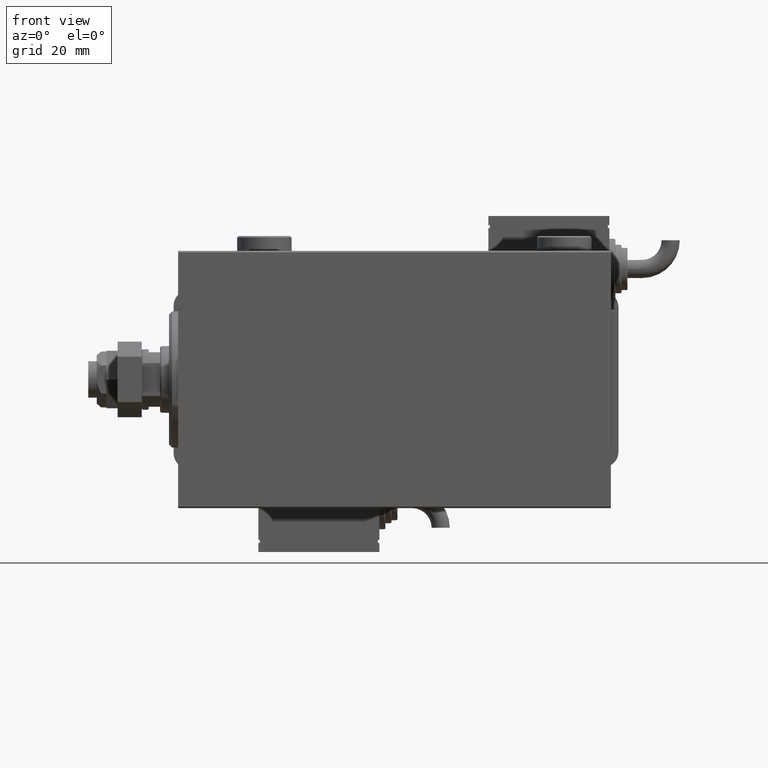
[diagram: clean part render]
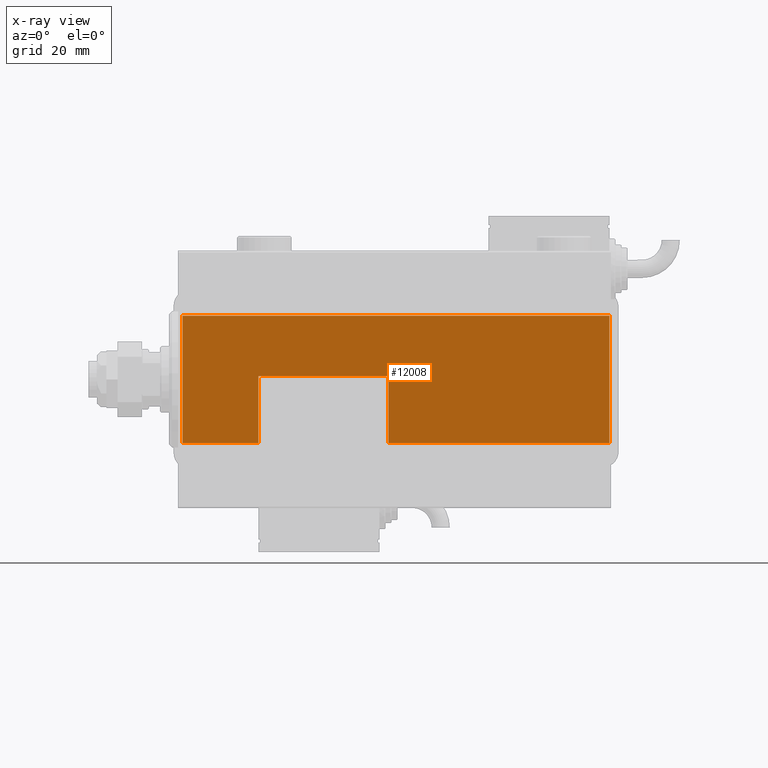
[diagram: x-ray — body ghosted, one internal face saturated and labeled with its STEP entity id]
A machine part, front view, then the same camera in x-ray: the body is ghosted and one INTERNAL B-rep face — a face not visible from any outside direction — is saturated and labeled: STEP entity #12008.
In plain terms, the highlighted planar face has unit normal (0, 1, -0).
Its self-contained STEP definition (entity closure, byte-faithful):
#10 = DIRECTION ( 'NONE',  ( 0.000000000000000000, -0.000000000000000000, 1.000000000000000000 ) ) ;
#4320 = DIRECTION ( 'NONE',  ( 0.000000000000000000, 1.000000000000000000, 0.000000000000000000 ) ) ;
#5029 = ORIENTED_EDGE ( 'NONE', *, *, #57652, .T. ) ;
#5928 = EDGE_CURVE ( 'NONE', #54383, #49446, #8482, .T. ) ;
#5935 = VECTOR ( 'NONE', #57774, 1000.000000000000000 ) ;
#5965 = CARTESIAN_POINT ( 'NONE',  ( -26.00000000000000000, 22.79999999999999716, 144.0000000000000000 ) ) ;
#6276 = DIRECTION ( 'NONE',  ( -0.000000000000000000, -0.000000000000000000, 1.000000000000000000 ) ) ;
#6315 = AXIS2_PLACEMENT_3D ( 'NONE', #27768, #4320, #10 ) ;
#6634 = DIRECTION ( 'NONE',  ( 1.000000000000000000, -0.000000000000000000, 0.000000000000000000 ) ) ;
#8446 = ORIENTED_EDGE ( 'NONE', *, *, #29453, .F. ) ;
#8482 = LINE ( 'NONE', #27295, #19870 ) ;
#8784 = CARTESIAN_POINT ( 'NONE',  ( -20.99999999999999645, 22.79999999999999716, 3.000000000000002665 ) ) ;
#8897 = VERTEX_POINT ( 'NONE', #44927 ) ;
#9972 = EDGE_CURVE ( 'NONE', #49446, #12838, #34704, .T. ) ;
#10310 = EDGE_CURVE ( 'NONE', #34469, #59660, #31817, .T. ) ;
#11244 = CARTESIAN_POINT ( 'NONE',  ( -26.00000000000000000, 22.79999999999999716, 119.0000000000000000 ) ) ;
#12008 = ADVANCED_FACE ( 'NONE', ( #23132 ), #14799, .F. ) ;
#12838 = VERTEX_POINT ( 'NONE', #31270 ) ;
#13091 = VECTOR ( 'NONE', #6634, 1000.000000000000000 ) ;
#14730 = EDGE_CURVE ( 'NONE', #60135, #55310, #25689, .T. ) ;
#14799 = PLANE ( 'NONE',  #6315 ) ;
#19252 = LINE ( 'NONE', #5965, #5935 ) ;
#19284 = LINE ( 'NONE', #48535, #33100 ) ;
#19870 = VECTOR ( 'NONE', #46102, 1000.000000000000000 ) ;
#22850 = DIRECTION ( 'NONE',  ( 0.000000000000000000, 0.000000000000000000, -1.000000000000000000 ) ) ;
#23132 = FACE_OUTER_BOUND ( 'NONE', #44761, .T. ) ;
#24099 = VECTOR ( 'NONE', #6276, 1000.000000000000000 ) ;
#25689 = LINE ( 'NONE', #48508, #24099 ) ;
#26622 = ORIENTED_EDGE ( 'NONE', *, *, #9972, .T. ) ;
#26872 = VECTOR ( 'NONE', #22850, 1000.000000000000000 ) ;
#27295 = CARTESIAN_POINT ( 'NONE',  ( -20.99999999999999645, 22.79999999999999716, 0.000000000000000000 ) ) ;
#27338 = CARTESIAN_POINT ( 'NONE',  ( -26.00000000000000000, 22.79999999999999716, 3.000000000000002665 ) ) ;
#27768 = CARTESIAN_POINT ( 'NONE',  ( -26.00000000000000000, 22.79999999999999716, 144.0000000000000000 ) ) ;
#29453 = EDGE_CURVE ( 'NONE', #8897, #12838, #34801, .T. ) ;
#31270 = CARTESIAN_POINT ( 'NONE',  ( 1.000000000000014655, 22.79999999999999716, 119.0000000000000000 ) ) ;
#31370 = DIRECTION ( 'NONE',  ( -1.000000000000000000, 0.000000000000000000, 0.000000000000000000 ) ) ;
#31390 = ORIENTED_EDGE ( 'NONE', *, *, #10310, .T. ) ;
#31817 = LINE ( 'NONE', #55239, #26872 ) ;
#32870 = ORIENTED_EDGE ( 'NONE', *, *, #5928, .T. ) ;
#33100 = VECTOR ( 'NONE', #34081, 1000.000000000000000 ) ;
#33769 = ORIENTED_EDGE ( 'NONE', *, *, #43703, .F. ) ;
#34081 = DIRECTION ( 'NONE',  ( -1.000000000000000000, 0.000000000000000000, 0.000000000000000000 ) ) ;
#34469 = VERTEX_POINT ( 'NONE', #56886 ) ;
#34704 = LINE ( 'NONE', #11244, #13091 ) ;
#34801 = LINE ( 'NONE', #49266, #48856 ) ;
#35979 = ORIENTED_EDGE ( 'NONE', *, *, #36289, .F. ) ;
#36289 = EDGE_CURVE ( 'NONE', #60135, #59660, #55695, .T. ) ;
#39622 = ORIENTED_EDGE ( 'NONE', *, *, #14730, .T. ) ;
#41191 = CARTESIAN_POINT ( 'NONE',  ( 20.99999999999998579, 22.79999999999999716, 144.0000000000000000 ) ) ;
#42247 = CARTESIAN_POINT ( 'NONE',  ( -20.99999999999999645, 22.79999999999999716, 119.0000000000000000 ) ) ;
#43703 = EDGE_CURVE ( 'NONE', #54383, #55310, #19252, .T. ) ;
#44345 = DIRECTION ( 'NONE',  ( 0.000000000000000000, -0.000000000000000000, 1.000000000000000000 ) ) ;
#44761 = EDGE_LOOP ( 'NONE', ( #8446, #5029, #31390, #35979, #39622, #33769, #32870, #26622 ) ) ;
#44927 = CARTESIAN_POINT ( 'NONE',  ( 1.000000000000014655, 22.79999999999999716, 76.00000000000000000 ) ) ;
#46102 = DIRECTION ( 'NONE',  ( 0.000000000000000000, 0.000000000000000000, -1.000000000000000000 ) ) ;
#48508 = CARTESIAN_POINT ( 'NONE',  ( 20.99999999999999645, 22.79999999999999716, 144.0000000000000000 ) ) ;
#48535 = CARTESIAN_POINT ( 'NONE',  ( -26.00000000000000000, 22.79999999999999716, 76.00000000000000000 ) ) ;
#48856 = VECTOR ( 'NONE', #44345, 1000.000000000000000 ) ;
#49266 = CARTESIAN_POINT ( 'NONE',  ( 1.000000000000014655, 22.79999999999999716, 144.0000000000000000 ) ) ;
#49446 = VERTEX_POINT ( 'NONE', #42247 ) ;
#49952 = VECTOR ( 'NONE', #31370, 1000.000000000000000 ) ;
#53688 = CARTESIAN_POINT ( 'NONE',  ( 20.99999999999998579, 22.79999999999999716, 3.000000000000002665 ) ) ;
#54383 = VERTEX_POINT ( 'NONE', #55355 ) ;
#55239 = CARTESIAN_POINT ( 'NONE',  ( -20.99999999999999645, 22.79999999999999716, 0.000000000000000000 ) ) ;
#55310 = VERTEX_POINT ( 'NONE', #41191 ) ;
#55355 = CARTESIAN_POINT ( 'NONE',  ( -20.99999999999999645, 22.79999999999999716, 144.0000000000000000 ) ) ;
#55695 = LINE ( 'NONE', #27338, #49952 ) ;
#56886 = CARTESIAN_POINT ( 'NONE',  ( -20.99999999999999645, 22.79999999999999716, 76.00000000000000000 ) ) ;
#57652 = EDGE_CURVE ( 'NONE', #8897, #34469, #19284, .T. ) ;
#57774 = DIRECTION ( 'NONE',  ( 1.000000000000000000, 0.000000000000000000, 0.000000000000000000 ) ) ;
#59660 = VERTEX_POINT ( 'NONE', #8784 ) ;
#60135 = VERTEX_POINT ( 'NONE', #53688 ) ;